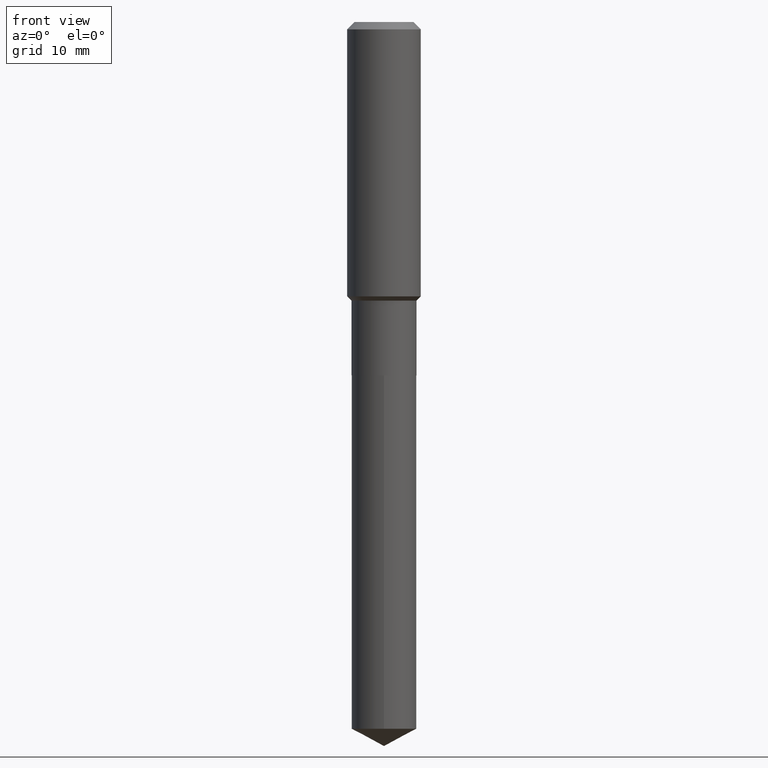
[diagram: clean part render]
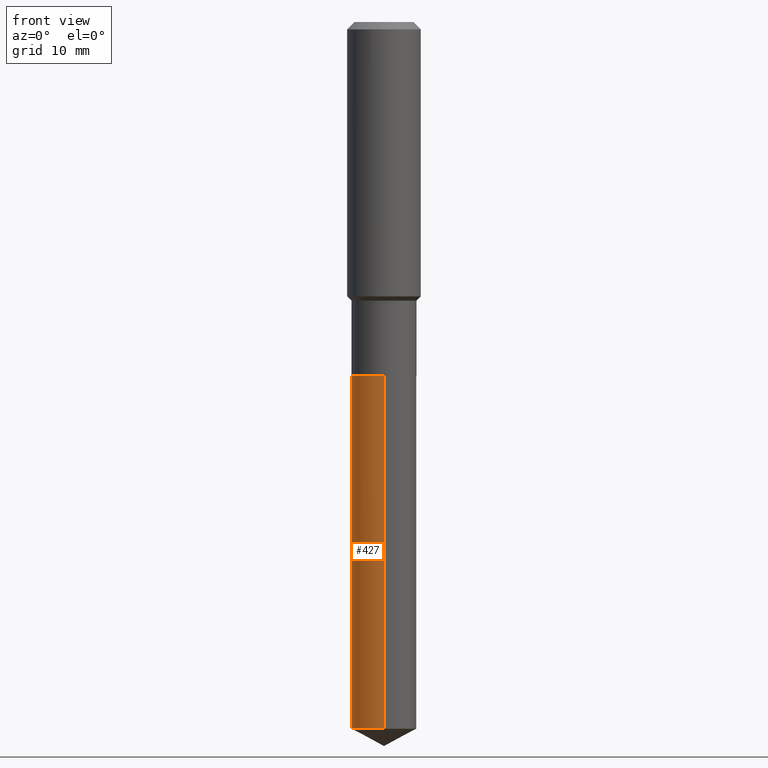
[diagram: same view with one face highlighted and labeled with its STEP entity id]
A machine part, front view. The second image highlights one B-rep face of the part: STEP entity #427.
In plain terms, the highlighted cylindrical surface (edge-blend (fillet) strip) has radius 5.2997 mm, axis along (-0, 0, 1).
Its self-contained STEP definition (entity closure, byte-faithful):
#23 = LINE ( 'NONE', #331, #314 ) ;
#24 = EDGE_CURVE ( 'NONE', #313, #456, #272, .T. ) ;
#69 = DIRECTION ( 'NONE',  ( -2.445496192392085927E-29, 3.491442120236068010E-15, 1.000000000000000000 ) ) ;
#81 = CARTESIAN_POINT ( 'NONE',  ( 1.108967334134841419E-28, -1.583293691002807105E-14, -4.534758827083832600 ) ) ;
#105 = CARTESIAN_POINT ( 'NONE',  ( 1.482547418163559691E-15, 0.2086499999999842092, -4.534758827083833488 ) ) ;
#145 = VERTEX_POINT ( 'NONE', #348 ) ;
#163 = DIRECTION ( 'NONE',  ( -2.445496192392085927E-29, 3.491442120236068010E-15, 1.000000000000000000 ) ) ;
#167 = AXIS2_PLACEMENT_3D ( 'NONE', #81, #163, #281 ) ;
#178 = CARTESIAN_POINT ( 'NONE',  ( -1.456995162699128700E-15, -0.2086500000000158506, -4.534758827083831711 ) ) ;
#189 = CARTESIAN_POINT ( 'NONE',  ( -1.456995162699183723E-15, -0.2086500000000079402, -2.267699999999998717 ) ) ;
#197 = CYLINDRICAL_SURFACE ( 'NONE', #436, 0.2086500000000000021 ) ;
#225 = ORIENTED_EDGE ( 'NONE', *, *, #24, .T. ) ;
#227 = EDGE_CURVE ( 'NONE', #145, #456, #341, .T. ) ;
#235 = EDGE_CURVE ( 'NONE', #347, #313, #382, .T. ) ;
#272 = LINE ( 'NONE', #189, #329 ) ;
#274 = CARTESIAN_POINT ( 'NONE',  ( 5.545589611786032874E-29, -7.917632232094598886E-15, -2.267699999999999605 ) ) ;
#279 = DIRECTION ( 'NONE',  ( -2.445496192392085927E-29, 3.491442120236068010E-15, 1.000000000000000000 ) ) ;
#281 = DIRECTION ( 'NONE',  ( -6.982962677686265922E-15, -1.000000000000000000, 2.618593811324479633E-15 ) ) ;
#290 = ORIENTED_EDGE ( 'NONE', *, *, #333, .F. ) ;
#301 = ORIENTED_EDGE ( 'NONE', *, *, #227, .F. ) ;
#313 = VERTEX_POINT ( 'NONE', #178 ) ;
#314 = VECTOR ( 'NONE', #475, 39.37007874015748143 ) ;
#322 = AXIS2_PLACEMENT_3D ( 'NONE', #428, #279, #455 ) ;
#329 = VECTOR ( 'NONE', #383, 39.37007874015748143 ) ;
#331 = CARTESIAN_POINT ( 'NONE',  ( 1.482547418163504470E-15, 0.2086499999999920918, -2.267700000000000049 ) ) ;
#333 = EDGE_CURVE ( 'NONE', #347, #145, #23, .T. ) ;
#341 = CIRCLE ( 'NONE', #322, 0.2086500000000000021 ) ;
#347 = VERTEX_POINT ( 'NONE', #105 ) ;
#348 = CARTESIAN_POINT ( 'NONE',  ( 1.482547418163559888E-15, 0.2086499999999920363, -2.267700000000000049 ) ) ;
#374 = FACE_OUTER_BOUND ( 'NONE', #417, .T. ) ;
#382 = CIRCLE ( 'NONE', #167, 0.2086500000000000021 ) ;
#383 = DIRECTION ( 'NONE',  ( -2.445496192392085647E-29, 3.491442120236068404E-15, 1.000000000000000000 ) ) ;
#417 = EDGE_LOOP ( 'NONE', ( #290, #483, #225, #301 ) ) ;
#427 = ADVANCED_FACE ( 'NONE', ( #374 ), #197, .T. ) ;
#428 = CARTESIAN_POINT ( 'NONE',  ( 5.545589611786032874E-29, -7.917632232094598886E-15, -2.267699999999999605 ) ) ;
#436 = AXIS2_PLACEMENT_3D ( 'NONE', #274, #69, #486 ) ;
#445 = CARTESIAN_POINT ( 'NONE',  ( -1.456995162699183723E-15, -0.2086500000000079402, -2.267699999999998717 ) ) ;
#455 = DIRECTION ( 'NONE',  ( -6.982962677686265922E-15, -1.000000000000000000, 3.927890716986719253E-15 ) ) ;
#456 = VERTEX_POINT ( 'NONE', #445 ) ;
#475 = DIRECTION ( 'NONE',  ( -2.445496192392085647E-29, 3.491442120236068404E-15, 1.000000000000000000 ) ) ;
#483 = ORIENTED_EDGE ( 'NONE', *, *, #235, .T. ) ;
#486 = DIRECTION ( 'NONE',  ( -6.982962677686265922E-15, -1.000000000000000000, 3.927890716986719253E-15 ) ) ;